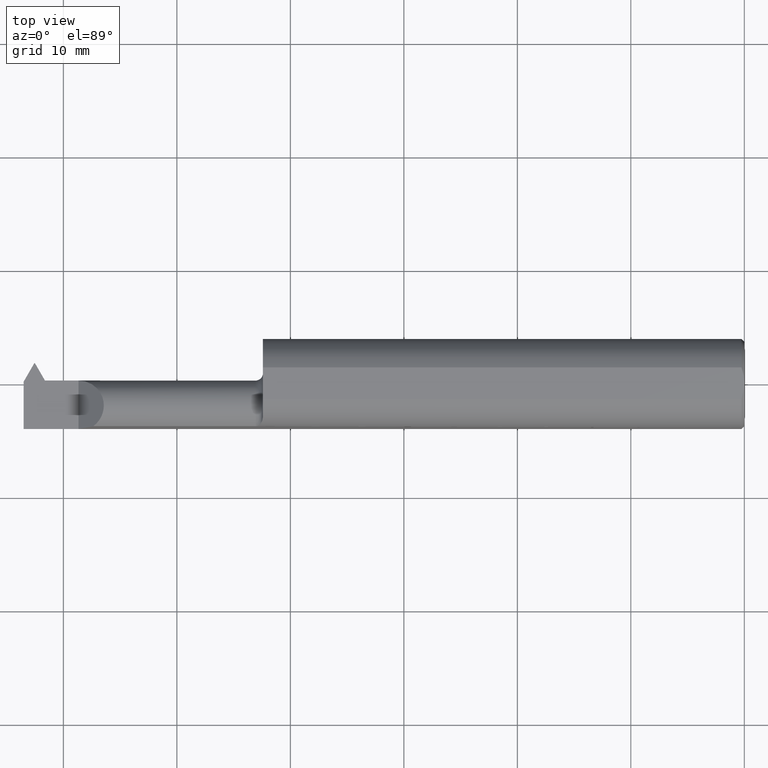
[diagram: clean part render]
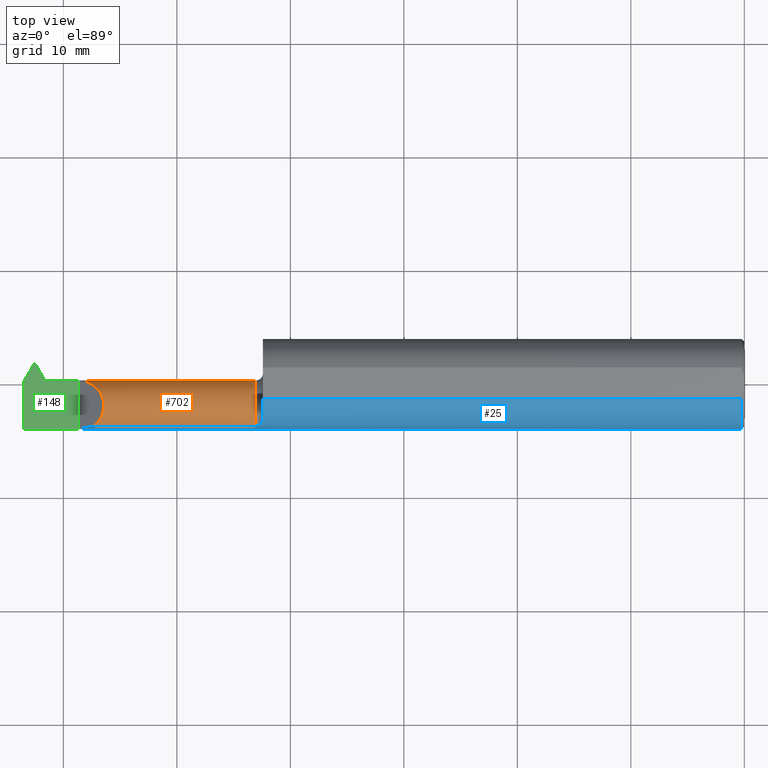
[diagram: same view with three faces highlighted in distinct colors, each labeled with its STEP entity id]
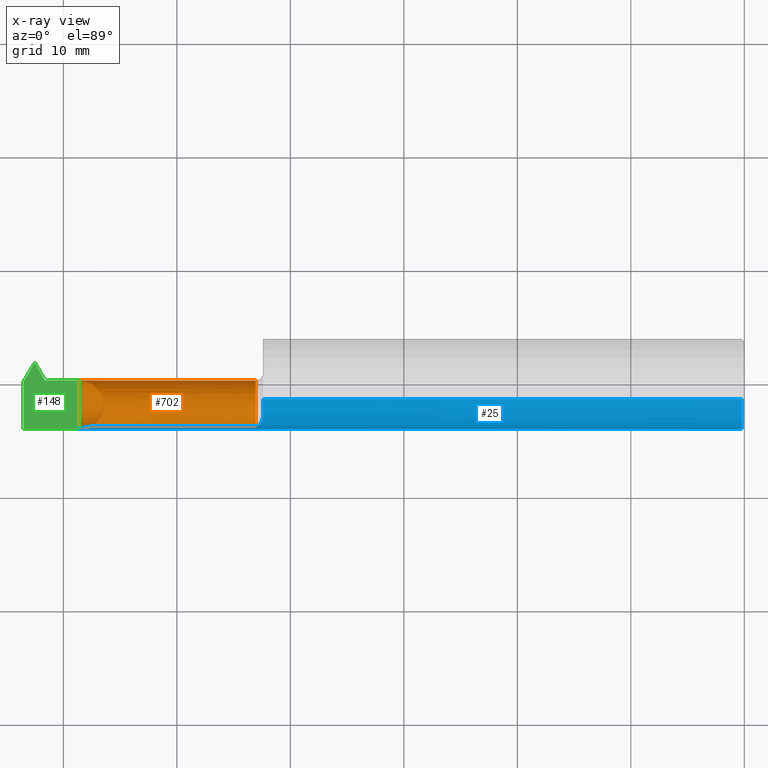
[diagram: x-ray of the same camera — body ghosted, the three highlighted faces saturated]
A machine part, top view with three faces highlighted in distinct colors.
The next image is the same camera in x-ray (body ghosted, the three faces saturated) — at least one of them is partly hidden behind the body in this view.
Their STEP definitions:

[orange] entity #702 — the highlighted cylindrical surface (edge-blend (fillet) strip) has radius 2.2352 mm, axis along (-1, -0, -0).
#7 = DIRECTION ( 'NONE',  ( 1.000000000000000000, 1.553500558300393113E-17, -0.000000000000000000 ) ) ;
#9 = EDGE_CURVE ( 'NONE', #755, #439, #522, .T. ) ;
#10 = VECTOR ( 'NONE', #766, 39.37007874015748143 ) ;
#18 = ORIENTED_EDGE ( 'NONE', *, *, #241, .T. ) ;
#22 = VERTEX_POINT ( 'NONE', #319 ) ;
#27 = ORIENTED_EDGE ( 'NONE', *, *, #686, .F. ) ;
#30 = LINE ( 'NONE', #116, #10 ) ;
#31 = DIRECTION ( 'NONE',  ( 0.000000000000000000, -1.000000000000000000, 0.000000000000000000 ) ) ;
#38 = DIRECTION ( 'NONE',  ( 0.000000000000000000, -1.000000000000000000, 0.000000000000000000 ) ) ;
#47 = EDGE_CURVE ( 'NONE', #409, #616, #397, .T. ) ;
#49 = CARTESIAN_POINT ( 'NONE',  ( -2.421108983848621943, 0.01189999999999981004, 0.000000000000000000 ) ) ;
#56 = ORIENTED_EDGE ( 'NONE', *, *, #548, .T. ) ;
#58 = CARTESIAN_POINT ( 'NONE',  ( -2.413632881043807465, 0.007084169345407169416, -0.02871226167188161912 ) ) ;
#76 = EDGE_LOOP ( 'NONE', ( #200, #700, #272, #56, #825, #339, #773, #27, #18, #848, #820, #456 ) ) ;
#78 = CARTESIAN_POINT ( 'NONE',  ( -2.415267408189822440, 0.007084169345407207580, -0.02871226167188153586 ) ) ;
#98 = VECTOR ( 'NONE', #175, 39.37007874015748143 ) ;
#104 = CARTESIAN_POINT ( 'NONE',  ( -2.500000000000000000, -0.07610000000000008424, 0.000000000000000000 ) ) ;
#107 = CARTESIAN_POINT ( 'NONE',  ( -2.417151050136866708, 0.01027984334874563511, -0.01945386571184650262 ) ) ;
#116 = CARTESIAN_POINT ( 'NONE',  ( -2.058054491924310891, -0.1472695137976346713, 0.05175809410911783731 ) ) ;
#118 = DIRECTION ( 'NONE',  ( 1.000000000000000000, -0.000000000000000000, 0.000000000000000000 ) ) ;
#122 = LINE ( 'NONE', #176, #185 ) ;
#137 = VECTOR ( 'NONE', #341, 39.37007874015748143 ) ;
#145 = VERTEX_POINT ( 'NONE', #620 ) ;
#157 = FACE_OUTER_BOUND ( 'NONE', #76, .T. ) ;
#158 = EDGE_CURVE ( 'NONE', #448, #795, #589, .T. ) ;
#175 = DIRECTION ( 'NONE',  ( 1.000000000000000000, 1.301231752219315598E-17, 0.000000000000000000 ) ) ;
#176 = CARTESIAN_POINT ( 'NONE',  ( -2.500000000000000000, 0.01189999999999991238, 8.875653457662611807E-19 ) ) ;
#185 = VECTOR ( 'NONE', #720, 39.37007874015748143 ) ;
#193 = DIRECTION ( 'NONE',  ( 1.000000000000000000, 1.301231752219315598E-17, 0.000000000000000000 ) ) ;
#194 = CARTESIAN_POINT ( 'NONE',  ( -2.421108983848621943, 0.01189999999999981004, 0.000000000000000000 ) ) ;
#196 = CARTESIAN_POINT ( 'NONE',  ( -2.500000000000000000, 0.007084169345407198906, -0.02871226167188161912 ) ) ;
#200 = ORIENTED_EDGE ( 'NONE', *, *, #342, .F. ) ;
#232 = VECTOR ( 'NONE', #193, 39.37007874015748143 ) ;
#241 = EDGE_CURVE ( 'NONE', #145, #276, #320, .T. ) ;
#246 = CARTESIAN_POINT ( 'NONE',  ( -2.206585760359397241, 0.01189999999999992106, 0.1034142396406014797 ) ) ;
#248 = LINE ( 'NONE', #782, #98 ) ;
#272 = ORIENTED_EDGE ( 'NONE', *, *, #510, .T. ) ;
#274 = LINE ( 'NONE', #196, #137 ) ;
#276 = VERTEX_POINT ( 'NONE', #370 ) ;
#301 = CARTESIAN_POINT ( 'NONE',  ( -1.694999999999999840, -0.07610000000000007037, 0.000000000000000000 ) ) ;
#314 = CARTESIAN_POINT ( 'NONE',  ( -2.500000000000000000, -0.04738773832811996045, -0.08318416934540778795 ) ) ;
#319 = CARTESIAN_POINT ( 'NONE',  ( -2.413632881043807465, -0.04738773832811999515, -0.08318416934540782959 ) ) ;
#320 = CIRCLE ( 'NONE', #446, 0.08800000000000013367 ) ;
#324 = CARTESIAN_POINT ( 'NONE',  ( -2.310000000000000053, 0.01189999999999987769, 0.000000000000000000 ) ) ;
#339 = ORIENTED_EDGE ( 'NONE', *, *, #491, .T. ) ;
#341 = DIRECTION ( 'NONE',  ( -1.000000000000000000, -1.301231752219315598E-17, -0.000000000000000000 ) ) ;
#342 = EDGE_CURVE ( 'NONE', #770, #612, #768, .T. ) ;
#357 = CARTESIAN_POINT ( 'NONE',  ( -2.310000000000000053, 0.01189999999999987769, 0.000000000000000000 ) ) ;
#363 = DIRECTION ( 'NONE',  ( -1.000000000000000000, -1.301231752219315598E-17, -0.000000000000000000 ) ) ;
#370 = CARTESIAN_POINT ( 'NONE',  ( -1.694999999999999840, -0.1472695137976347546, -0.05175809410911790670 ) ) ;
#372 = DIRECTION ( 'NONE',  ( -1.000000000000000000, -1.553500558300393113E-17, -0.000000000000000000 ) ) ;
#384 = DIRECTION ( 'NONE',  ( 0.000000000000000000, -8.731048275205388281E-16, 1.000000000000000000 ) ) ;
#397 =( BOUNDED_CURVE ( )  B_SPLINE_CURVE ( 3, ( #194, #727, #107, #644 ),
 .UNSPECIFIED., .F., .F. ) 
 B_SPLINE_CURVE_WITH_KNOTS ( ( 4, 4 ),
 ( 1.570796326794896780, 1.903157296839100399 ),
 .UNSPECIFIED. ) 
 CURVE ( )  GEOMETRIC_REPRESENTATION_ITEM ( )  RATIONAL_B_SPLINE_CURVE ( ( 1.000000000000000000, 0.9908158471105027454, 0.9908158471105027454, 1.000000000000000000 ) ) 
 REPRESENTATION_ITEM ( '' )  );
#409 = VERTEX_POINT ( 'NONE', #49 ) ;
#431 = DIRECTION ( 'NONE',  ( -1.000000000000000000, -1.301231752219315598E-17, -0.000000000000000000 ) ) ;
#436 = DIRECTION ( 'NONE',  ( 0.000000000000000000, -1.000000000000000000, 0.000000000000000000 ) ) ;
#439 = VERTEX_POINT ( 'NONE', #453 ) ;
#446 = AXIS2_PLACEMENT_3D ( 'NONE', #301, #431, #31 ) ;
#448 = VERTEX_POINT ( 'NONE', #596 ) ;
#453 = CARTESIAN_POINT ( 'NONE',  ( -2.258241905890881807, -0.1472695137976346991, 0.05175809410911768466 ) ) ;
#456 = ORIENTED_EDGE ( 'NONE', *, *, #651, .F. ) ;
#472 = LINE ( 'NONE', #743, #517 ) ;
#473 = DIRECTION ( 'NONE',  ( 0.000000000000000000, -1.000000000000000000, 0.000000000000000000 ) ) ;
#476 = EDGE_CURVE ( 'NONE', #770, #22, #726, .T. ) ;
#479 = CIRCLE ( 'NONE', #627, 0.08799999999999999489 ) ;
#491 = EDGE_CURVE ( 'NONE', #409, #755, #122, .T. ) ;
#510 = EDGE_CURVE ( 'NONE', #22, #608, #479, .T. ) ;
#512 = DIRECTION ( 'NONE',  ( -1.000000000000000000, -1.301231752219315598E-17, -0.000000000000000000 ) ) ;
#514 = CARTESIAN_POINT ( 'NONE',  ( -2.174606210947998441, -0.08644537803012225519, 0.1353937890520005016 ) ) ;
#517 = VECTOR ( 'NONE', #372, 39.37007874015748143 ) ;
#522 =( BOUNDED_CURVE ( )  B_SPLINE_CURVE ( 3, ( #324, #246, #514, #784 ),
 .UNSPECIFIED., .F., .F. ) 
 B_SPLINE_CURVE_WITH_KNOTS ( ( 4, 4 ),
 ( 1.570796326794896558, 4.083606959790378355 ),
 .UNSPECIFIED. ) 
 CURVE ( )  GEOMETRIC_REPRESENTATION_ITEM ( )  RATIONAL_B_SPLINE_CURVE ( ( 1.000000000000000000, 0.5394915924057041012, 0.5394915924057041012, 1.000000000000000000 ) ) 
 REPRESENTATION_ITEM ( '' )  );
#543 = CARTESIAN_POINT ( 'NONE',  ( -2.421108983848621943, -0.07610000000000007037, -0.08799999999999992550 ) ) ;
#548 = EDGE_CURVE ( 'NONE', #608, #616, #274, .T. ) ;
#589 = CIRCLE ( 'NONE', #838, 0.08799999999999992550 ) ;
#596 = CARTESIAN_POINT ( 'NONE',  ( -2.500000000000000000, -0.1472695137976348934, -0.05175809410911740016 ) ) ;
#608 = VERTEX_POINT ( 'NONE', #58 ) ;
#612 = VERTEX_POINT ( 'NONE', #543 ) ;
#616 = VERTEX_POINT ( 'NONE', #78 ) ;
#620 = CARTESIAN_POINT ( 'NONE',  ( -1.694999999999999840, -0.1472695137976347546, 0.05175809410911791364 ) ) ;
#627 = AXIS2_PLACEMENT_3D ( 'NONE', #850, #118, #384 ) ;
#644 = CARTESIAN_POINT ( 'NONE',  ( -2.415267408189822440, 0.007084169345407207580, -0.02871226167188153586 ) ) ;
#651 = EDGE_CURVE ( 'NONE', #612, #795, #472, .T. ) ;
#664 = AXIS2_PLACEMENT_3D ( 'NONE', #104, #512, #38 ) ;
#686 = EDGE_CURVE ( 'NONE', #145, #439, #30, .T. ) ;
#699 = CARTESIAN_POINT ( 'NONE',  ( -2.421108983848621943, -0.07610000000000008424, 0.000000000000000000 ) ) ;
#700 = ORIENTED_EDGE ( 'NONE', *, *, #476, .T. ) ;
#702 = ADVANCED_FACE ( 'NONE', ( #157 ), #714, .T. ) ;
#703 = CARTESIAN_POINT ( 'NONE',  ( -2.500000000000000000, -0.07610000000000007037, -0.08799999999999992550 ) ) ;
#714 = CYLINDRICAL_SURFACE ( 'NONE', #664, 0.08799999999999999489 ) ;
#720 = DIRECTION ( 'NONE',  ( 1.000000000000000000, 1.301231752219315598E-17, 0.000000000000000000 ) ) ;
#726 = LINE ( 'NONE', #314, #232 ) ;
#727 = CARTESIAN_POINT ( 'NONE',  ( -2.419116291096571558, 0.01189999999999992626, -0.009794397791003099651 ) ) ;
#735 = EDGE_CURVE ( 'NONE', #448, #276, #248, .T. ) ;
#743 = CARTESIAN_POINT ( 'NONE',  ( -2.399999999999999911, -0.07610000000000007037, -0.08799999999999992550 ) ) ;
#755 = VERTEX_POINT ( 'NONE', #357 ) ;
#765 = AXIS2_PLACEMENT_3D ( 'NONE', #699, #363, #436 ) ;
#766 = DIRECTION ( 'NONE',  ( -1.000000000000000000, -1.301231752219315598E-17, -0.000000000000000000 ) ) ;
#768 = CIRCLE ( 'NONE', #765, 0.08799999999999988387 ) ;
#770 = VERTEX_POINT ( 'NONE', #779 ) ;
#773 = ORIENTED_EDGE ( 'NONE', *, *, #9, .T. ) ;
#779 = CARTESIAN_POINT ( 'NONE',  ( -2.421108983848621943, -0.04738773832811973147, -0.08318416934540759367 ) ) ;
#782 = CARTESIAN_POINT ( 'NONE',  ( -2.058054491924310891, -0.1472695137976346713, -0.05175809410911783731 ) ) ;
#784 = CARTESIAN_POINT ( 'NONE',  ( -2.258241905890881807, -0.1472695137976346991, 0.05175809410911768466 ) ) ;
#795 = VERTEX_POINT ( 'NONE', #703 ) ;
#807 = CARTESIAN_POINT ( 'NONE',  ( -2.500000000000000000, -0.07610000000000008424, 0.000000000000000000 ) ) ;
#820 = ORIENTED_EDGE ( 'NONE', *, *, #158, .T. ) ;
#825 = ORIENTED_EDGE ( 'NONE', *, *, #47, .F. ) ;
#838 = AXIS2_PLACEMENT_3D ( 'NONE', #807, #7, #473 ) ;
#848 = ORIENTED_EDGE ( 'NONE', *, *, #735, .F. ) ;
#850 = CARTESIAN_POINT ( 'NONE',  ( -2.413632881043807465, -0.07610000000000008424, 0.000000000000000000 ) ) ;

[blue] entity #25 — the highlighted cylindrical surface (partial cylindrical patch) has radius 3.9649 mm, axis along (1, 0, -0).
#3 = CARTESIAN_POINT ( 'NONE',  ( -1.693447391068664043, -0.1472695137984706970, 0.05175809410673895550 ) ) ;
#10 = VECTOR ( 'NONE', #766, 39.37007874015748143 ) ;
#12 = LINE ( 'NONE', #428, #177 ) ;
#25 = ADVANCED_FACE ( 'NONE', ( #722 ), #666, .T. ) ;
#30 = LINE ( 'NONE', #116, #10 ) ;
#32 = CIRCLE ( 'NONE', #226, 0.1561000000000000165 ) ;
#54 = CARTESIAN_POINT ( 'NONE',  ( -2.500000000000000000, -0.1561000000000000720, 1.911673653469018376E-17 ) ) ;
#61 = VERTEX_POINT ( 'NONE', #730 ) ;
#64 = CARTESIAN_POINT ( 'NONE',  ( -1.689325941459028479, -0.1465552322353804726, 0.05375321273095502728 ) ) ;
#72 = VERTEX_POINT ( 'NONE', #348 ) ;
#85 = DIRECTION ( 'NONE',  ( 1.000000000000000000, 1.224646799147352961E-16, -0.000000000000000000 ) ) ;
#89 = CARTESIAN_POINT ( 'NONE',  ( -1.669999999999999929, -0.1142537450716377551, 0.1063639588253864066 ) ) ;
#110 = B_SPLINE_CURVE_WITH_KNOTS ( 'NONE', 3,
 ( #866, #412, #481, #477, #211, #748, #465, #284, #407, #279, #64, #336, #3, #687 ),
 .UNSPECIFIED., .F., .F.,
 ( 4, 2, 2, 2, 2, 2, 4 ),
 ( 0.0002357998142118108715, 0.0006937643599550314191, 0.001151728905698251940, 0.001609693451441472460, 0.001838675724313082504, 0.001953166860748887634, 0.002067657997184692547 ),
 .UNSPECIFIED. ) ;
#116 = CARTESIAN_POINT ( 'NONE',  ( -2.058054491924310891, -0.1472695137976346713, 0.05175809410911783731 ) ) ;
#141 = CARTESIAN_POINT ( 'NONE',  ( -1.669999999999999929, -0.05497272050753901351, 0.1461000000000000076 ) ) ;
#145 = VERTEX_POINT ( 'NONE', #620 ) ;
#159 = CARTESIAN_POINT ( 'NONE',  ( -2.274912119307999969, -0.1531282856005203030, 0.03508788069200007714 ) ) ;
#164 = AXIS2_PLACEMENT_3D ( 'NONE', #614, #217, #601 ) ;
#165 = CARTESIAN_POINT ( 'NONE',  ( -2.292330217250612812, -0.1561000000000000443, 0.01766978274938703006 ) ) ;
#174 = ORIENTED_EDGE ( 'NONE', *, *, #686, .T. ) ;
#177 = VECTOR ( 'NONE', #85, 39.37007874015748143 ) ;
#178 = EDGE_LOOP ( 'NONE', ( #847, #558, #817, #498, #400, #837, #174 ) ) ;
#189 = DIRECTION ( 'NONE',  ( 1.000000000000000000, 1.224646799147352961E-16, -0.000000000000000000 ) ) ;
#211 = CARTESIAN_POINT ( 'NONE',  ( -1.673484131199154623, -0.1325297027135503847, 0.08268119770259226009 ) ) ;
#217 = DIRECTION ( 'NONE',  ( 1.000000000000000000, 1.301231752219315598E-17, 0.000000000000000000 ) ) ;
#223 = VERTEX_POINT ( 'NONE', #141 ) ;
#226 = AXIS2_PLACEMENT_3D ( 'NONE', #470, #322, #605 ) ;
#236 = VERTEX_POINT ( 'NONE', #399 ) ;
#253 =( BOUNDED_CURVE ( )  B_SPLINE_CURVE ( 3, ( #832, #165, #159, #429 ),
 .UNSPECIFIED., .F., .F. ) 
 B_SPLINE_CURVE_WITH_KNOTS ( ( 4, 4 ),
 ( 4.712388980384689674, 5.050356325447890704 ),
 .UNSPECIFIED. ) 
 CURVE ( )  GEOMETRIC_REPRESENTATION_ITEM ( )  RATIONAL_B_SPLINE_CURVE ( ( 1.000000000000000000, 0.9905041350217796969, 0.9905041350217796969, 1.000000000000000000 ) ) 
 REPRESENTATION_ITEM ( '' )  );
#256 = DIRECTION ( 'NONE',  ( 1.000000000000000000, 1.224646799147352961E-16, -0.000000000000000000 ) ) ;
#259 = LINE ( 'NONE', #54, #806 ) ;
#279 = CARTESIAN_POINT ( 'NONE',  ( -1.688181177459762594, -0.1461969813683959285, 0.05472577389935778802 ) ) ;
#284 = CARTESIAN_POINT ( 'NONE',  ( -1.683413277050727519, -0.1440082460785158947, 0.06029952348880728008 ) ) ;
#296 = CIRCLE ( 'NONE', #164, 0.1561000000000000165 ) ;
#309 = VERTEX_POINT ( 'NONE', #89 ) ;
#312 = CARTESIAN_POINT ( 'NONE',  ( -2.500000000000000000, -6.123233995736767268E-17, 0.000000000000000000 ) ) ;
#316 = DIRECTION ( 'NONE',  ( 0.000000000000000000, 1.000000000000000000, 0.000000000000000000 ) ) ;
#322 = DIRECTION ( 'NONE',  ( -1.000000000000000000, -1.224646799147319927E-16, 0.000000000000000000 ) ) ;
#331 = EDGE_CURVE ( 'NONE', #236, #439, #253, .T. ) ;
#336 = CARTESIAN_POINT ( 'NONE',  ( -1.691954860809191885, -0.1470959542221378924, 0.05225537509141345988 ) ) ;
#348 = CARTESIAN_POINT ( 'NONE',  ( -0.009999999999999054784, -0.1560999999999997667, 1.911673653469018376E-17 ) ) ;
#399 = CARTESIAN_POINT ( 'NONE',  ( -2.310000000000000053, -0.1561000000000000998, 0.000000000000000000 ) ) ;
#400 = ORIENTED_EDGE ( 'NONE', *, *, #628, .T. ) ;
#407 = CARTESIAN_POINT ( 'NONE',  ( -1.685083227087319280, -0.1449949082926819677, 0.05786810286898754624 ) ) ;
#412 = CARTESIAN_POINT ( 'NONE',  ( -1.669999999999970397, -0.1183584908119609674, 0.1019547343236882758 ) ) ;
#428 = CARTESIAN_POINT ( 'NONE',  ( -2.500000000000000000, -0.05497272050753911760, 0.1461000000000000076 ) ) ;
#429 = CARTESIAN_POINT ( 'NONE',  ( -2.258241905890881807, -0.1472695137976346991, 0.05175809410911768466 ) ) ;
#439 = VERTEX_POINT ( 'NONE', #453 ) ;
#443 = EDGE_CURVE ( 'NONE', #236, #72, #259, .T. ) ;
#453 = CARTESIAN_POINT ( 'NONE',  ( -2.258241905890881807, -0.1472695137976346991, 0.05175809410911768466 ) ) ;
#465 = CARTESIAN_POINT ( 'NONE',  ( -1.679024368971156367, -0.1407725817217480024, 0.06766890069850563239 ) ) ;
#470 = CARTESIAN_POINT ( 'NONE',  ( -0.009999999999999073866, 2.437047130303233649E-16, 0.000000000000000000 ) ) ;
#477 = CARTESIAN_POINT ( 'NONE',  ( -1.672189633566593781, -0.1292798516107754037, 0.08769141204666423828 ) ) ;
#481 = CARTESIAN_POINT ( 'NONE',  ( -1.670448686022204532, -0.1221823836831238408, 0.09733719174473788593 ) ) ;
#498 = ORIENTED_EDGE ( 'NONE', *, *, #763, .F. ) ;
#558 = ORIENTED_EDGE ( 'NONE', *, *, #443, .T. ) ;
#586 = EDGE_CURVE ( 'NONE', #309, #145, #110, .T. ) ;
#601 = DIRECTION ( 'NONE',  ( 0.000000000000000000, -1.000000000000000000, -4.440892098500626162E-15 ) ) ;
#605 = DIRECTION ( 'NONE',  ( -1.230512889522860364E-16, 1.000000000000000000, 8.881784197001252323E-16 ) ) ;
#614 = CARTESIAN_POINT ( 'NONE',  ( -1.669999999999999929, 4.041334437186263414E-17, 0.000000000000000000 ) ) ;
#620 = CARTESIAN_POINT ( 'NONE',  ( -1.694999999999999840, -0.1472695137976347546, 0.05175809410911791364 ) ) ;
#628 = EDGE_CURVE ( 'NONE', #223, #309, #296, .T. ) ;
#666 = CYLINDRICAL_SURFACE ( 'NONE', #677, 0.1561000000000000165 ) ;
#677 = AXIS2_PLACEMENT_3D ( 'NONE', #312, #256, #316 ) ;
#686 = EDGE_CURVE ( 'NONE', #145, #439, #30, .T. ) ;
#687 = CARTESIAN_POINT ( 'NONE',  ( -1.694999999999999840, -0.1472695137976347546, 0.05175809410911791364 ) ) ;
#722 = FACE_OUTER_BOUND ( 'NONE', #178, .T. ) ;
#730 = CARTESIAN_POINT ( 'NONE',  ( -0.009999999999999073866, -0.05497272050753881228, 0.1461000000000000076 ) ) ;
#748 = CARTESIAN_POINT ( 'NONE',  ( -1.676922816836100560, -0.1382559065226614814, 0.07270217924157629241 ) ) ;
#763 = EDGE_CURVE ( 'NONE', #223, #61, #12, .T. ) ;
#766 = DIRECTION ( 'NONE',  ( -1.000000000000000000, -1.301231752219315598E-17, -0.000000000000000000 ) ) ;
#806 = VECTOR ( 'NONE', #189, 39.37007874015748143 ) ;
#817 = ORIENTED_EDGE ( 'NONE', *, *, #823, .T. ) ;
#823 = EDGE_CURVE ( 'NONE', #72, #61, #32, .T. ) ;
#832 = CARTESIAN_POINT ( 'NONE',  ( -2.310000000000000053, -0.1561000000000000998, 0.000000000000000000 ) ) ;
#837 = ORIENTED_EDGE ( 'NONE', *, *, #586, .T. ) ;
#847 = ORIENTED_EDGE ( 'NONE', *, *, #331, .F. ) ;
#866 = CARTESIAN_POINT ( 'NONE',  ( -1.669999999999999929, -0.1142537450716377551, 0.1063639588253864066 ) ) ;

[green] entity #148 — the highlighted planar face has unit normal (-0, 0, -1).
#13 = DIRECTION ( 'NONE',  ( -4.671396556664535003E-18, 0.000000000000000000, -1.000000000000000000 ) ) ;
#17 = CARTESIAN_POINT ( 'NONE',  ( -2.500000000000000000, 0.07189999999999992231, 8.875653457662611807E-19 ) ) ;
#28 = LINE ( 'NONE', #560, #564 ) ;
#42 = LINE ( 'NONE', #195, #696 ) ;
#49 = CARTESIAN_POINT ( 'NONE',  ( -2.421108983848621943, 0.01189999999999981004, 0.000000000000000000 ) ) ;
#95 = LINE ( 'NONE', #17, #271 ) ;
#99 = CARTESIAN_POINT ( 'NONE',  ( -2.426108983848622280, 0.01189999999999981004, 0.000000000000000000 ) ) ;
#108 = AXIS2_PLACEMENT_3D ( 'NONE', #744, #13, #602 ) ;
#111 = CARTESIAN_POINT ( 'NONE',  ( -2.488969632988080628E-16, 0.01190000000005054549, 0.000000000000000000 ) ) ;
#120 = VERTEX_POINT ( 'NONE', #544 ) ;
#122 = LINE ( 'NONE', #176, #185 ) ;
#138 = VECTOR ( 'NONE', #827, 39.37007874015748143 ) ;
#142 = ORIENTED_EDGE ( 'NONE', *, *, #835, .T. ) ;
#148 = ADVANCED_FACE ( 'NONE', ( #333 ), #536, .F. ) ;
#176 = CARTESIAN_POINT ( 'NONE',  ( -2.500000000000000000, 0.01189999999999991238, 8.875653457662611807E-19 ) ) ;
#185 = VECTOR ( 'NONE', #720, 39.37007874015748143 ) ;
#195 = CARTESIAN_POINT ( 'NONE',  ( -2.500000000000000000, -0.1561000000000000720, 8.875653457662609881E-19 ) ) ;
#236 = VERTEX_POINT ( 'NONE', #399 ) ;
#244 = LINE ( 'NONE', #444, #254 ) ;
#252 = EDGE_CURVE ( 'NONE', #236, #755, #632, .T. ) ;
#254 = VECTOR ( 'NONE', #516, 39.37007874015748143 ) ;
#264 = EDGE_CURVE ( 'NONE', #728, #353, #503, .T. ) ;
#267 = VERTEX_POINT ( 'NONE', #99 ) ;
#271 = VECTOR ( 'NONE', #712, 39.37007874015748143 ) ;
#311 = CARTESIAN_POINT ( 'NONE',  ( -2.500000000000000000, -0.1561000000000000720, 8.875653457662611807E-19 ) ) ;
#333 = FACE_OUTER_BOUND ( 'NONE', #831, .T. ) ;
#340 = EDGE_CURVE ( 'NONE', #353, #120, #95, .T. ) ;
#353 = VERTEX_POINT ( 'NONE', #840 ) ;
#357 = CARTESIAN_POINT ( 'NONE',  ( -2.310000000000000053, 0.01189999999999987769, 0.000000000000000000 ) ) ;
#358 = CARTESIAN_POINT ( 'NONE',  ( -1.878571113266080284, 1.084593537935991225, 0.000000000000000000 ) ) ;
#367 = EDGE_CURVE ( 'NONE', #120, #267, #28, .T. ) ;
#368 = ORIENTED_EDGE ( 'NONE', *, *, #252, .T. ) ;
#399 = CARTESIAN_POINT ( 'NONE',  ( -2.310000000000000053, -0.1561000000000000998, 0.000000000000000000 ) ) ;
#409 = VERTEX_POINT ( 'NONE', #49 ) ;
#444 = CARTESIAN_POINT ( 'NONE',  ( -2.500000000000000000, -6.123233995736767268E-17, 8.875653457662611807E-19 ) ) ;
#461 = VERTEX_POINT ( 'NONE', #311 ) ;
#469 = ORIENTED_EDGE ( 'NONE', *, *, #502, .F. ) ;
#491 = EDGE_CURVE ( 'NONE', #409, #755, #122, .T. ) ;
#493 = VECTOR ( 'NONE', #582, 39.37007874015748143 ) ;
#502 = EDGE_CURVE ( 'NONE', #267, #409, #660, .T. ) ;
#503 = LINE ( 'NONE', #358, #708 ) ;
#516 = DIRECTION ( 'NONE',  ( 1.224646799147352961E-16, -1.000000000000000000, -5.720810840667189241E-34 ) ) ;
#529 = ORIENTED_EDGE ( 'NONE', *, *, #340, .F. ) ;
#536 = PLANE ( 'NONE',  #108 ) ;
#538 = DIRECTION ( 'NONE',  ( 1.000000000000000000, 1.224646799147352961E-16, -0.000000000000000000 ) ) ;
#544 = CARTESIAN_POINT ( 'NONE',  ( -2.460750000000000437, 0.07189999999999995006, 0.000000000000000000 ) ) ;
#554 = ORIENTED_EDGE ( 'NONE', *, *, #753, .T. ) ;
#556 = CARTESIAN_POINT ( 'NONE',  ( -2.310000000000000053, -0.2500000000000000000, 0.000000000000000000 ) ) ;
#560 = CARTESIAN_POINT ( 'NONE',  ( -1.814428886733931101, -1.047561006181289001, 0.000000000000000000 ) ) ;
#564 = VECTOR ( 'NONE', #830, 39.37007874015748854 ) ;
#566 = ORIENTED_EDGE ( 'NONE', *, *, #491, .F. ) ;
#568 = DIRECTION ( 'NONE',  ( 0.4999999999999878986, 0.8660254037844455910, 0.000000000000000000 ) ) ;
#582 = DIRECTION ( 'NONE',  ( 1.000000000000000000, 2.091571120149166951E-14, 0.000000000000000000 ) ) ;
#602 = DIRECTION ( 'NONE',  ( -1.000000000000000000, 0.000000000000000000, 4.671396556664535003E-18 ) ) ;
#632 = LINE ( 'NONE', #556, #138 ) ;
#639 = ORIENTED_EDGE ( 'NONE', *, *, #367, .F. ) ;
#647 = CARTESIAN_POINT ( 'NONE',  ( -2.500000000000000000, 0.008247132821841942490, 0.000000000000000000 ) ) ;
#660 = LINE ( 'NONE', #111, #493 ) ;
#696 = VECTOR ( 'NONE', #538, 39.37007874015748143 ) ;
#708 = VECTOR ( 'NONE', #568, 39.37007874015748143 ) ;
#712 = DIRECTION ( 'NONE',  ( 1.000000000000000000, 1.301231752219315598E-17, 0.000000000000000000 ) ) ;
#720 = DIRECTION ( 'NONE',  ( 1.000000000000000000, 1.301231752219315598E-17, 0.000000000000000000 ) ) ;
#728 = VERTEX_POINT ( 'NONE', #647 ) ;
#744 = CARTESIAN_POINT ( 'NONE',  ( -2.500000000000000000, -0.2500000000000000000, 8.875653457662611807E-19 ) ) ;
#753 = EDGE_CURVE ( 'NONE', #728, #461, #244, .T. ) ;
#755 = VERTEX_POINT ( 'NONE', #357 ) ;
#759 = ORIENTED_EDGE ( 'NONE', *, *, #264, .F. ) ;
#827 = DIRECTION ( 'NONE',  ( -0.000000000000000000, 1.000000000000000000, -0.000000000000000000 ) ) ;
#830 = DIRECTION ( 'NONE',  ( 0.5000000000000074385, -0.8660254037844342667, 0.000000000000000000 ) ) ;
#831 = EDGE_LOOP ( 'NONE', ( #529, #759, #554, #142, #368, #566, #469, #639 ) ) ;
#835 = EDGE_CURVE ( 'NONE', #461, #236, #42, .T. ) ;
#840 = CARTESIAN_POINT ( 'NONE',  ( -2.463250000000000384, 0.07189999999999988067, 0.000000000000000000 ) ) ;